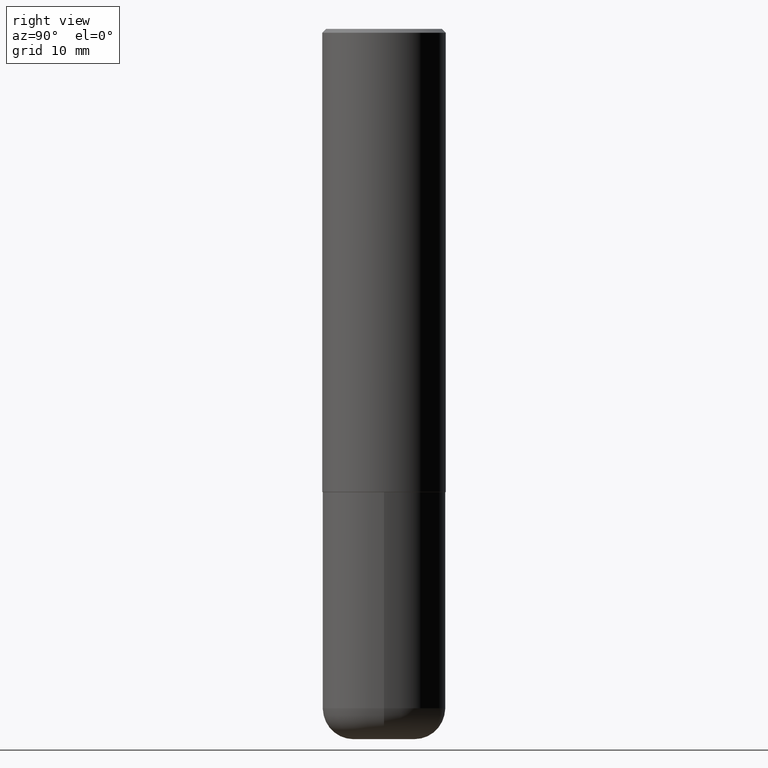
[diagram: clean part render]
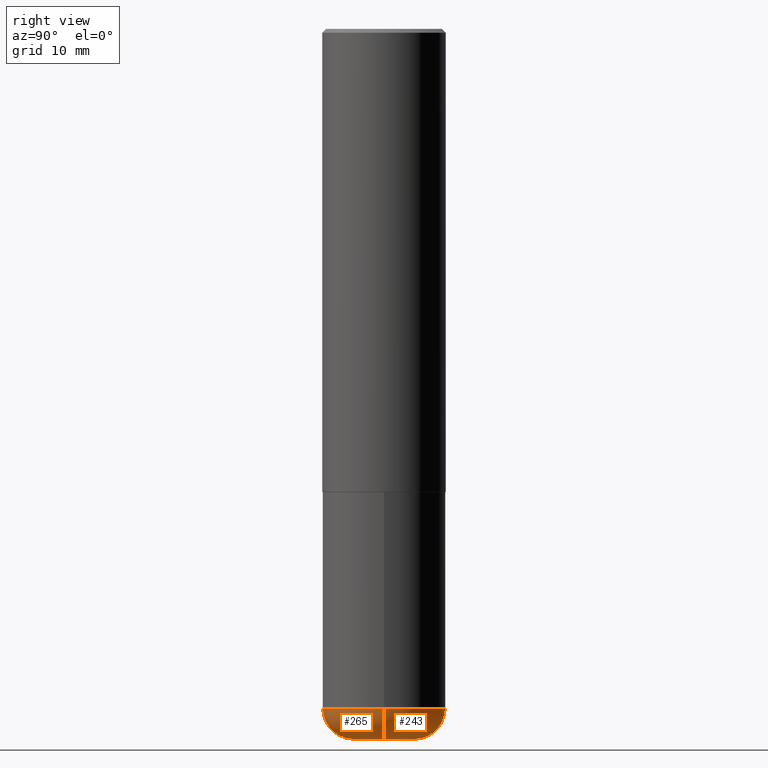
[diagram: same view with one multi-face feature highlighted, each face labeled with its STEP entity id]
A machine part, right view. The highlighted faces form ONE feature: a constant-radius fillet chain: 2 tangent blend faces with common blend radius 4.0005 mm. The faces share edges in the B-rep.
Their STEP definitions:
[1] entity #243 (Torus):
#3 = DIRECTION ( 'NONE',  ( -2.445468806185136597E-29, 3.491481338843145583E-15, 1.000000000000000000 ) ) ;
#24 = EDGE_LOOP ( 'NONE', ( #272, #348, #302, #148 ) ) ;
#28 = CARTESIAN_POINT ( 'NONE',  ( 0.1574500000000000066, -1.319570457202378025E-14, -3.464499999999999691 ) ) ;
#32 = CARTESIAN_POINT ( 'NONE',  ( 0.1574500000000000621, -1.374561288289157517E-14, -3.621999999999999886 ) ) ;
#46 = FACE_OUTER_BOUND ( 'NONE', #24, .T. ) ;
#88 = DIRECTION ( 'NONE',  ( 1.000000000000000000, -6.982962677686266711E-15, 4.883557194083112901E-29 ) ) ;
#93 = DIRECTION ( 'NONE',  ( 1.000000000000000000, -6.982962677686268288E-15, 0.000000000000000000 ) ) ;
#103 = AXIS2_PLACEMENT_3D ( 'NONE', #398, #247, #375 ) ;
#113 = EDGE_CURVE ( 'NONE', #339, #158, #170, .T. ) ;
#121 = TOROIDAL_SURFACE ( 'NONE', #327, 0.1574500000000000066, 0.1575000000000000844 ) ;
#131 = DIRECTION ( 'NONE',  ( -6.982962677686266711E-15, -1.000000000000000000, 3.491481338843145583E-15 ) ) ;
#132 = VERTEX_POINT ( 'NONE', #323 ) ;
#144 = CIRCLE ( 'NONE', #164, 0.1575000000000001399 ) ;
#148 = ORIENTED_EDGE ( 'NONE', *, *, #287, .F. ) ;
#158 = VERTEX_POINT ( 'NONE', #245 ) ;
#163 = VERTEX_POINT ( 'NONE', #352 ) ;
#164 = AXIS2_PLACEMENT_3D ( 'NONE', #28, #131, #93 ) ;
#170 = CIRCLE ( 'NONE', #372, 0.1574500000000000621 ) ;
#181 = EDGE_CURVE ( 'NONE', #163, #132, #343, .T. ) ;
#184 = DIRECTION ( 'NONE',  ( 1.000000000000000000, -6.982962677686268288E-15, 0.000000000000000000 ) ) ;
#203 = DIRECTION ( 'NONE',  ( -2.445468806185136597E-29, 3.491481338843145583E-15, 1.000000000000000000 ) ) ;
#216 = EDGE_CURVE ( 'NONE', #158, #132, #281, .T. ) ;
#243 = ADVANCED_FACE ( 'NONE', ( #46 ), #121, .T. ) ;
#245 = CARTESIAN_POINT ( 'NONE',  ( -0.1574500000000000621, -1.069288931199061498E-14, -3.621999999999999886 ) ) ;
#247 = DIRECTION ( 'NONE',  ( 7.105427357601001859E-15, 1.000000000000000000, -3.491481338843145583E-15 ) ) ;
#249 = CARTESIAN_POINT ( 'NONE',  ( 8.472326679028403758E-29, -1.209623709842207707E-14, -3.464499999999999691 ) ) ;
#272 = ORIENTED_EDGE ( 'NONE', *, *, #113, .T. ) ;
#281 = CIRCLE ( 'NONE', #103, 0.1575000000000001399 ) ;
#287 = EDGE_CURVE ( 'NONE', #339, #163, #144, .T. ) ;
#290 = DIRECTION ( 'NONE',  ( 1.000000000000000000, -6.982962677686263555E-15, 0.000000000000000000 ) ) ;
#298 = AXIS2_PLACEMENT_3D ( 'NONE', #357, #3, #184 ) ;
#302 = ORIENTED_EDGE ( 'NONE', *, *, #181, .F. ) ;
#323 = CARTESIAN_POINT ( 'NONE',  ( -0.3149500000000001743, -9.858382752145637926E-15, -3.464499999999999247 ) ) ;
#327 = AXIS2_PLACEMENT_3D ( 'NONE', #249, #331, #88 ) ;
#331 = DIRECTION ( 'NONE',  ( -2.445468806185136597E-29, 3.491481338843145583E-15, 1.000000000000000000 ) ) ;
#339 = VERTEX_POINT ( 'NONE', #32 ) ;
#343 = CIRCLE ( 'NONE', #298, 0.3149500000000000632 ) ;
#348 = ORIENTED_EDGE ( 'NONE', *, *, #216, .T. ) ;
#352 = CARTESIAN_POINT ( 'NONE',  ( 0.3149500000000001743, -1.429552119375936694E-14, -3.464499999999999247 ) ) ;
#357 = CARTESIAN_POINT ( 'NONE',  ( 8.472326679028403758E-29, -1.209623709842207549E-14, -3.464499999999999247 ) ) ;
#372 = AXIS2_PLACEMENT_3D ( 'NONE', #391, #203, #290 ) ;
#375 = DIRECTION ( 'NONE',  ( -1.000000000000000000, 7.105427357601003436E-15, 0.000000000000000000 ) ) ;
#391 = CARTESIAN_POINT ( 'NONE',  ( 8.857488016002564476E-29, -1.264614540928987199E-14, -3.621999999999999886 ) ) ;
#398 = CARTESIAN_POINT ( 'NONE',  ( -0.1574500000000000066, -1.097748756096779869E-14, -3.464499999999999691 ) ) ;
[2] entity #265 (Torus):
#1 = EDGE_CURVE ( 'NONE', #132, #163, #119, .T. ) ;
#22 = AXIS2_PLACEMENT_3D ( 'NONE', #108, #137, #262 ) ;
#28 = CARTESIAN_POINT ( 'NONE',  ( 0.1574500000000000066, -1.319570457202378025E-14, -3.464499999999999691 ) ) ;
#32 = CARTESIAN_POINT ( 'NONE',  ( 0.1574500000000000621, -1.374561288289157517E-14, -3.621999999999999886 ) ) ;
#39 = AXIS2_PLACEMENT_3D ( 'NONE', #129, #201, #162 ) ;
#64 = DIRECTION ( 'NONE',  ( -2.445468806185136597E-29, 3.491481338843145583E-15, 1.000000000000000000 ) ) ;
#91 = ORIENTED_EDGE ( 'NONE', *, *, #411, .T. ) ;
#93 = DIRECTION ( 'NONE',  ( 1.000000000000000000, -6.982962677686268288E-15, 0.000000000000000000 ) ) ;
#103 = AXIS2_PLACEMENT_3D ( 'NONE', #398, #247, #375 ) ;
#108 = CARTESIAN_POINT ( 'NONE',  ( 8.857488016002564476E-29, -1.264614540928987199E-14, -3.621999999999999886 ) ) ;
#119 = CIRCLE ( 'NONE', #39, 0.3149500000000000632 ) ;
#129 = CARTESIAN_POINT ( 'NONE',  ( 8.472326679028403758E-29, -1.209623709842207549E-14, -3.464499999999999247 ) ) ;
#131 = DIRECTION ( 'NONE',  ( -6.982962677686266711E-15, -1.000000000000000000, 3.491481338843145583E-15 ) ) ;
#132 = VERTEX_POINT ( 'NONE', #323 ) ;
#137 = DIRECTION ( 'NONE',  ( -2.445468806185136597E-29, 3.491481338843145583E-15, 1.000000000000000000 ) ) ;
#144 = CIRCLE ( 'NONE', #164, 0.1575000000000001399 ) ;
#157 = ORIENTED_EDGE ( 'NONE', *, *, #287, .T. ) ;
#158 = VERTEX_POINT ( 'NONE', #245 ) ;
#162 = DIRECTION ( 'NONE',  ( 1.000000000000000000, -6.982962677686268288E-15, 0.000000000000000000 ) ) ;
#163 = VERTEX_POINT ( 'NONE', #352 ) ;
#164 = AXIS2_PLACEMENT_3D ( 'NONE', #28, #131, #93 ) ;
#194 = CARTESIAN_POINT ( 'NONE',  ( 8.472326679028403758E-29, -1.209623709842207707E-14, -3.464499999999999691 ) ) ;
#201 = DIRECTION ( 'NONE',  ( -2.445468806185136597E-29, 3.491481338843145583E-15, 1.000000000000000000 ) ) ;
#211 = CIRCLE ( 'NONE', #22, 0.1574500000000000621 ) ;
#216 = EDGE_CURVE ( 'NONE', #158, #132, #281, .T. ) ;
#219 = FACE_OUTER_BOUND ( 'NONE', #347, .T. ) ;
#233 = ORIENTED_EDGE ( 'NONE', *, *, #216, .F. ) ;
#245 = CARTESIAN_POINT ( 'NONE',  ( -0.1574500000000000621, -1.069288931199061498E-14, -3.621999999999999886 ) ) ;
#247 = DIRECTION ( 'NONE',  ( 7.105427357601001859E-15, 1.000000000000000000, -3.491481338843145583E-15 ) ) ;
#262 = DIRECTION ( 'NONE',  ( 1.000000000000000000, -6.982962677686263555E-15, 0.000000000000000000 ) ) ;
#265 = ADVANCED_FACE ( 'NONE', ( #219 ), #345, .T. ) ;
#266 = AXIS2_PLACEMENT_3D ( 'NONE', #194, #64, #349 ) ;
#281 = CIRCLE ( 'NONE', #103, 0.1575000000000001399 ) ;
#287 = EDGE_CURVE ( 'NONE', #339, #163, #144, .T. ) ;
#305 = ORIENTED_EDGE ( 'NONE', *, *, #1, .F. ) ;
#323 = CARTESIAN_POINT ( 'NONE',  ( -0.3149500000000001743, -9.858382752145637926E-15, -3.464499999999999247 ) ) ;
#339 = VERTEX_POINT ( 'NONE', #32 ) ;
#345 = TOROIDAL_SURFACE ( 'NONE', #266, 0.1574500000000000066, 0.1575000000000000844 ) ;
#347 = EDGE_LOOP ( 'NONE', ( #233, #91, #157, #305 ) ) ;
#349 = DIRECTION ( 'NONE',  ( 1.000000000000000000, -6.982962677686266711E-15, 4.883557194083112901E-29 ) ) ;
#352 = CARTESIAN_POINT ( 'NONE',  ( 0.3149500000000001743, -1.429552119375936694E-14, -3.464499999999999247 ) ) ;
#375 = DIRECTION ( 'NONE',  ( -1.000000000000000000, 7.105427357601003436E-15, 0.000000000000000000 ) ) ;
#398 = CARTESIAN_POINT ( 'NONE',  ( -0.1574500000000000066, -1.097748756096779869E-14, -3.464499999999999691 ) ) ;
#411 = EDGE_CURVE ( 'NONE', #158, #339, #211, .T. ) ;